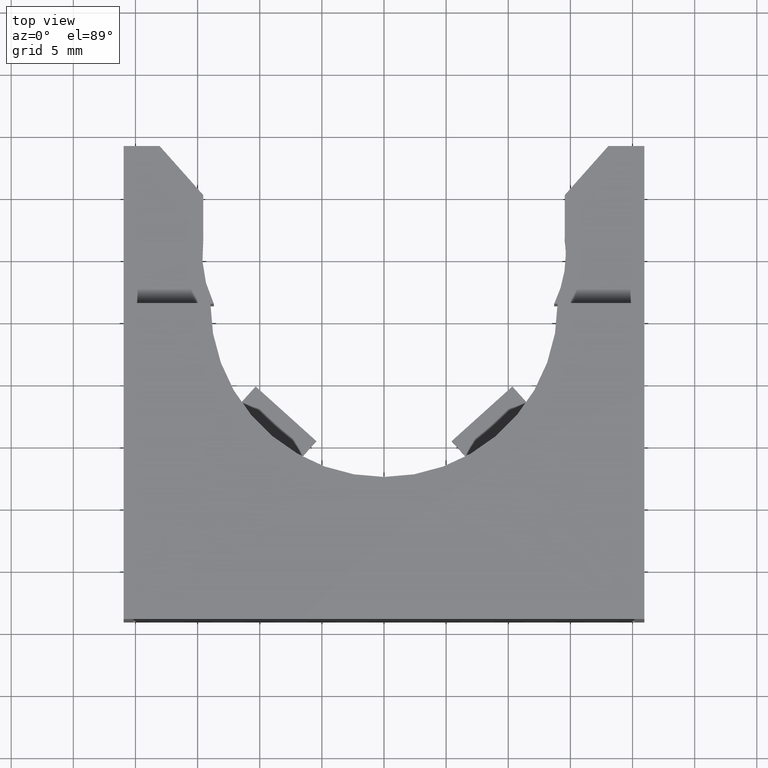
[diagram: clean part render]
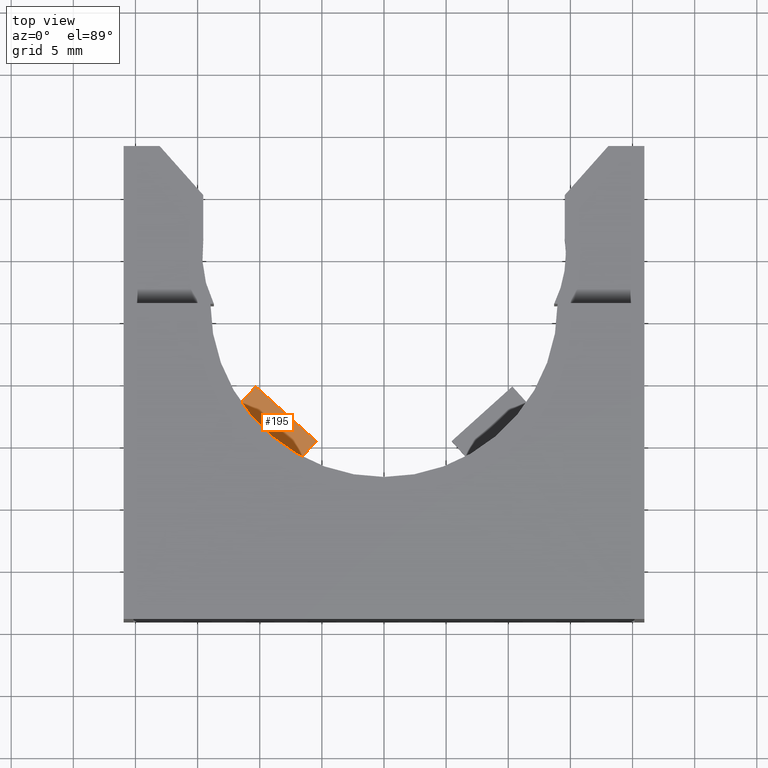
[diagram: same view with one face highlighted and labeled with its STEP entity id]
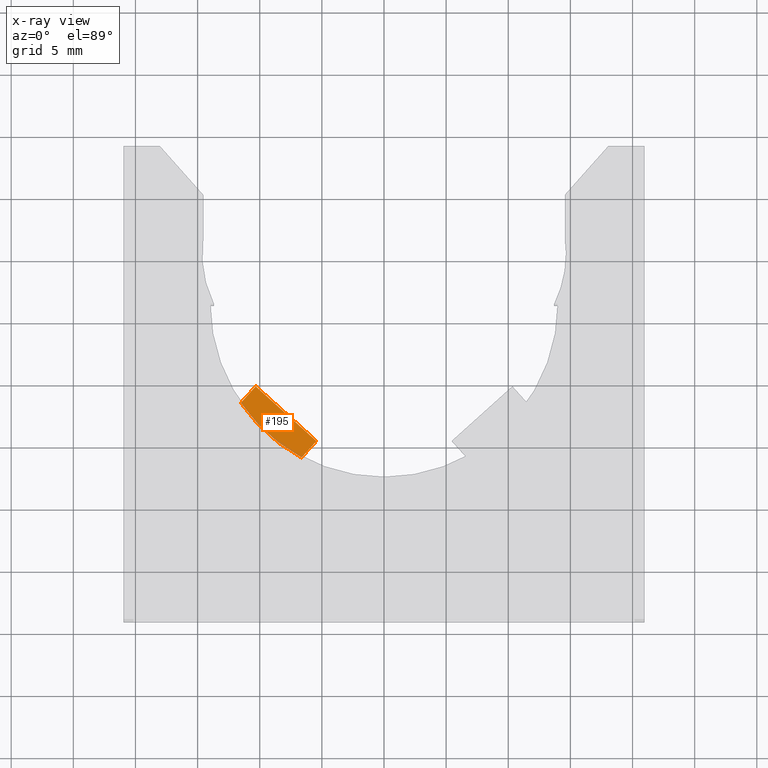
[diagram: x-ray of the same camera — body ghosted, the highlighted face saturated]
A machine part, top view. The second image highlights one B-rep face of the part: STEP entity #195.
The next image is the same camera in x-ray: the body ghosted, the highlighted face saturated — about 5% of this face is hidden behind the body in this view.
In plain terms, the highlighted planar face has unit normal (0, 0, -1).
Its self-contained STEP definition (entity closure, byte-faithful):
#172 = EDGE_CURVE ( 'NONE', #426, #312, #935, .T. ) ;
#195 = ADVANCED_FACE ( 'NONE', ( #907 ), #913, .F. ) ;
#196 = EDGE_LOOP ( 'NONE', ( #351, #352, #353, #354 ) ) ;
#267 = EDGE_CURVE ( 'NONE', #271, #426, #1027, .T. ) ;
#271 = VERTEX_POINT ( 'NONE', #1014 ) ;
#312 = VERTEX_POINT ( 'NONE', #1107 ) ;
#337 = EDGE_CURVE ( 'NONE', #312, #398, #1082, .T. ) ;
#351 = ORIENTED_EDGE ( 'NONE', *, *, #397, .F. ) ;
#352 = ORIENTED_EDGE ( 'NONE', *, *, #337, .F. ) ;
#353 = ORIENTED_EDGE ( 'NONE', *, *, #172, .F. ) ;
#354 = ORIENTED_EDGE ( 'NONE', *, *, #267, .F. ) ;
#397 = EDGE_CURVE ( 'NONE', #398, #271, #1313, .T. ) ;
#398 = VERTEX_POINT ( 'NONE', #1309 ) ;
#426 = VERTEX_POINT ( 'NONE', #1363 ) ;
#823 = DIRECTION ( 'NONE',  ( 0.0000000000000000000, 1.000000000000000000, 8.326672684688674100E-017 ) ) ;
#824 = DIRECTION ( 'NONE',  ( 0.0000000000000000000, 8.326672684688674100E-017, -1.000000000000000000 ) ) ;
#825 = CARTESIAN_POINT ( 'NONE',  ( 0.0000000000000000000, 0.2500000000000000600, 0.3399999999999999100 ) ) ;
#906 = AXIS2_PLACEMENT_3D ( 'NONE', #825, #824, #823 ) ;
#907 = FACE_OUTER_BOUND ( 'NONE', #196, .T. ) ;
#913 = PLANE ( 'NONE',  #906 ) ;
#932 = DIRECTION ( 'NONE',  ( 0.6691306063588595700, 0.7431448254773928000, -0.0000000000000000000 ) ) ;
#933 = VECTOR ( 'NONE', #932, 39.37007874015748900 ) ;
#934 = CARTESIAN_POINT ( 'NONE',  ( -0.4065822987001431200, -0.008207485605664987400, 0.3399999999999999100 ) ) ;
#935 = LINE ( 'NONE', #934, #933 ) ;
#1014 = CARTESIAN_POINT ( 'NONE',  ( -0.2615509241819619600, -0.2338296333003609100, 0.3399999999999998600 ) ) ;
#1027 = CIRCLE ( 'NONE', #1127, 0.5500000000000001600 ) ;
#1074 = DIRECTION ( 'NONE',  ( 0.7431448254773649300, -0.6691306063588907700, -0.0000000000000000000 ) ) ;
#1075 = VECTOR ( 'NONE', #1074, 39.37007874015748100 ) ;
#1076 = CARTESIAN_POINT ( 'NONE',  ( -0.2142935751078749700, -0.1813450300010279200, 0.3399999999999999100 ) ) ;
#1082 = LINE ( 'NONE', #1076, #1075 ) ;
#1107 = CARTESIAN_POINT ( 'NONE',  ( -0.4065822987001431200, -0.008207485605664987400, 0.3399999999999999100 ) ) ;
#1124 = DIRECTION ( 'NONE',  ( 0.0000000000000000000, 1.000000000000000000, 1.241749088029210100E-016 ) ) ;
#1125 = DIRECTION ( 'NONE',  ( 0.0000000000000000000, 8.326672684688674100E-017, -1.000000000000000000 ) ) ;
#1126 = CARTESIAN_POINT ( 'NONE',  ( 0.0000000000000000000, 0.2500000000000000600, 0.3399999999999999100 ) ) ;
#1127 = AXIS2_PLACEMENT_3D ( 'NONE', #1126, #1125, #1124 ) ;
#1309 = CARTESIAN_POINT ( 'NONE',  ( -0.2142935751078749700, -0.1813450300010279200, 0.3399999999999999100 ) ) ;
#1310 = DIRECTION ( 'NONE',  ( -0.6691306063588587900, -0.7431448254773936900, 0.0000000000000000000 ) ) ;
#1311 = VECTOR ( 'NONE', #1310, 39.37007874015748900 ) ;
#1312 = CARTESIAN_POINT ( 'NONE',  ( -0.2142935751078749700, -0.1813450300010279200, 0.3399999999999999100 ) ) ;
#1313 = LINE ( 'NONE', #1312, #1311 ) ;
#1363 = CARTESIAN_POINT ( 'NONE',  ( -0.4538396477742375800, -0.06069208890500586700, 0.3399999999999999100 ) ) ;